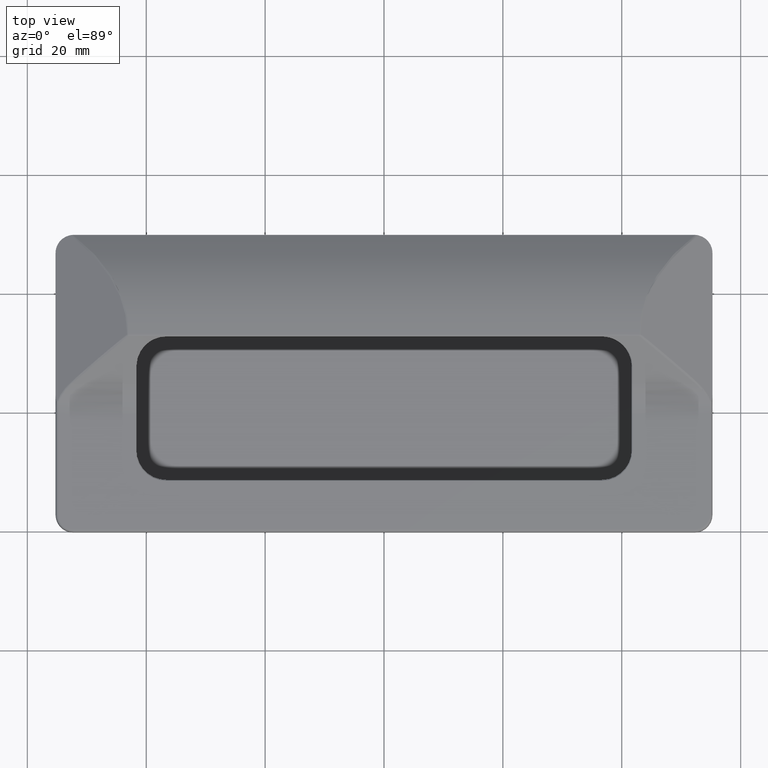
[diagram: clean part render]
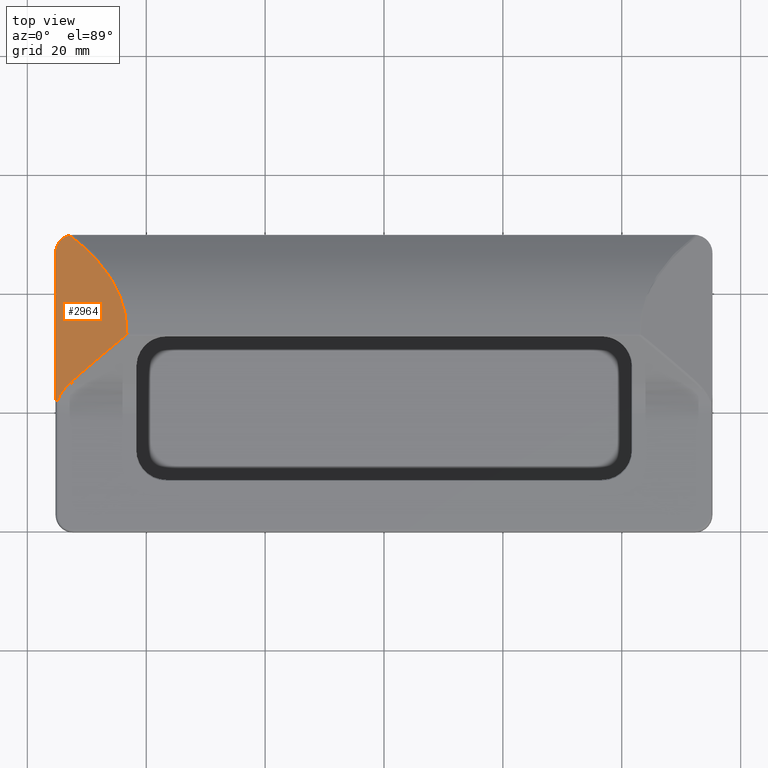
[diagram: same view with one face highlighted and labeled with its STEP entity id]
A machine part, top view. The second image highlights one B-rep face of the part: STEP entity #2964.
In plain terms, the highlighted planar face has unit normal (-0.5, 0, 0.866).
Its self-contained STEP definition (entity closure, byte-faithful):
#63=PLANE('',#3205);
#129=ELLIPSE('',#3202,19.1666666666667,9.58333333333334);
#131=ELLIPSE('',#3206,502.134146341211,251.067073170605);
#132=ELLIPSE('',#3207,53.3430850413026,26.6715425206513);
#133=ELLIPSE('',#3208,3.46410161513776,3.);
#195=LINE('',#4898,#433);
#433=VECTOR('',#3728,23.9449495366961);
#756=FACE_OUTER_BOUND('',#939,.T.);
#939=EDGE_LOOP('',(#2207,#2208,#2209,#2210,#2211,#2212));
#1095=B_SPLINE_CURVE_WITH_KNOTS('',3,(#4899,#4900,#4901,#4902,#4903,#4904,
#4905,#4906,#4907,#4908,#4909,#4910),.UNSPECIFIED.,.F.,.F.,(4,2,2,2,2,4),
(0.189913361272184,0.253991166453892,0.286382842240901,0.29336123824134,
0.297846921598432,0.299707827557337),.UNSPECIFIED.);
#1360=VERTEX_POINT('',#4877);
#1361=VERTEX_POINT('',#4878);
#1363=VERTEX_POINT('',#4891);
#1364=VERTEX_POINT('',#4893);
#1365=VERTEX_POINT('',#4895);
#1366=VERTEX_POINT('',#4897);
#1684=EDGE_CURVE('',#1360,#1361,#129,.T.);
#1688=EDGE_CURVE('',#1361,#1363,#131,.T.);
#1689=EDGE_CURVE('',#1363,#1364,#132,.T.);
#1690=EDGE_CURVE('',#1364,#1365,#133,.T.);
#1691=EDGE_CURVE('',#1365,#1366,#195,.T.);
#1692=EDGE_CURVE('',#1366,#1360,#1095,.T.);
#2207=ORIENTED_EDGE('',*,*,#1688,.T.);
#2208=ORIENTED_EDGE('',*,*,#1689,.T.);
#2209=ORIENTED_EDGE('',*,*,#1690,.T.);
#2210=ORIENTED_EDGE('',*,*,#1691,.T.);
#2211=ORIENTED_EDGE('',*,*,#1692,.T.);
#2212=ORIENTED_EDGE('',*,*,#1684,.T.);
#2964=ADVANCED_FACE('',(#756),#63,.T.);
#3202=AXIS2_PLACEMENT_3D('',#4879,#3714,#3715);
#3205=AXIS2_PLACEMENT_3D('',#4890,#3720,#3721);
#3206=AXIS2_PLACEMENT_3D('',#4892,#3722,#3723);
#3207=AXIS2_PLACEMENT_3D('',#4894,#3724,#3725);
#3208=AXIS2_PLACEMENT_3D('',#4896,#3726,#3727);
#3714=DIRECTION('center_axis',(0.5,0.,-0.866025403784439));
#3715=DIRECTION('ref_axis',(-0.866025403784439,0.,-0.5));
#3720=DIRECTION('center_axis',(-0.5,0.,0.866025403784439));
#3721=DIRECTION('ref_axis',(0.866025403784439,0.,0.5));
#3722=DIRECTION('center_axis',(0.5,0.,-0.866025403784439));
#3723=DIRECTION('ref_axis',(-0.866025403784439,3.53761410639694E-17,-0.5));
#3724=DIRECTION('center_axis',(-0.5,0.,0.866025403784439));
#3725=DIRECTION('ref_axis',(0.866025403784439,4.16257523825452E-17,0.5));
#3726=DIRECTION('center_axis',(-0.5,0.,0.866025403784439));
#3727=DIRECTION('ref_axis',(-0.866025403784439,8.01234452659818E-17,-0.5));
#3728=DIRECTION('',(0.,-1.,0.));
#4877=CARTESIAN_POINT('',(-55.0158743973479,21.9580246421264,0.135172479715365));
#4878=CARTESIAN_POINT('',(-52.6249358229988,25.2752293577982,1.51558150923167));
#4879=CARTESIAN_POINT('Origin',(-38.7672051645827,20.,9.51634603522556));
#4890=CARTESIAN_POINT('Origin',(-13.8125,0.,23.9239517795451));
#4891=CARTESIAN_POINT('',(-43.236332677578,33.1648402397195,6.93609406255494));
#4892=CARTESIAN_POINT('Origin',(310.424094840841,-112.926829268221,211.122037092032));
#4893=CARTESIAN_POINT('',(-52.8985140426911,49.9290663250313,1.35763105044791));
#4894=CARTESIAN_POINT('Origin',(-89.4266202739022,33.6010638297872,-19.7318809151291));
#4895=CARTESIAN_POINT('',(-55.25,47.,3.33066907387547E-15));
#4896=CARTESIAN_POINT('Origin',(-52.25,47.,1.73205080756888));
#4897=CARTESIAN_POINT('',(-55.25,23.0550504633039,2.22044604925031E-15));
#4898=CARTESIAN_POINT('',(-55.25,11.4429599083614,2.22044604925031E-15));
#4899=CARTESIAN_POINT('Ctrl Pts',(-55.25,23.0550504633039,-1.04625509644851E-16));
#4900=CARTESIAN_POINT('Ctrl Pts',(-55.25,22.8414577793649,-2.56540449326481E-16));
#4901=CARTESIAN_POINT('Ctrl Pts',(-55.2340395132379,22.5858099897136,0.00921479132852919));
#4902=CARTESIAN_POINT('Ctrl Pts',(-55.1784616855391,22.2707140014009,0.0413026651113584));
#4903=CARTESIAN_POINT('Ctrl Pts',(-55.1509085844148,22.1451142426861,0.0572104554625285));
#4904=CARTESIAN_POINT('Ctrl Pts',(-55.0933512850481,22.0319545017442,0.0904411777456883));
#4905=CARTESIAN_POINT('Ctrl Pts',(-55.0794075769718,22.0091524803733,0.0984915813570513));
#4906=CARTESIAN_POINT('Ctrl Pts',(-55.0559027222229,21.9822518955172,0.112062115573583));
#4907=CARTESIAN_POINT('Ctrl Pts',(-55.0435867577133,21.9713112507856,0.119172740998563));
#4908=CARTESIAN_POINT('Ctrl Pts',(-55.0270696145902,21.9621574574539,0.128708918026887));
#4909=CARTESIAN_POINT('Ctrl Pts',(-55.0215444176556,21.9597187907032,0.131898891964437));
#4910=CARTESIAN_POINT('Ctrl Pts',(-55.015874397348,21.9580246421261,0.135172479715328));